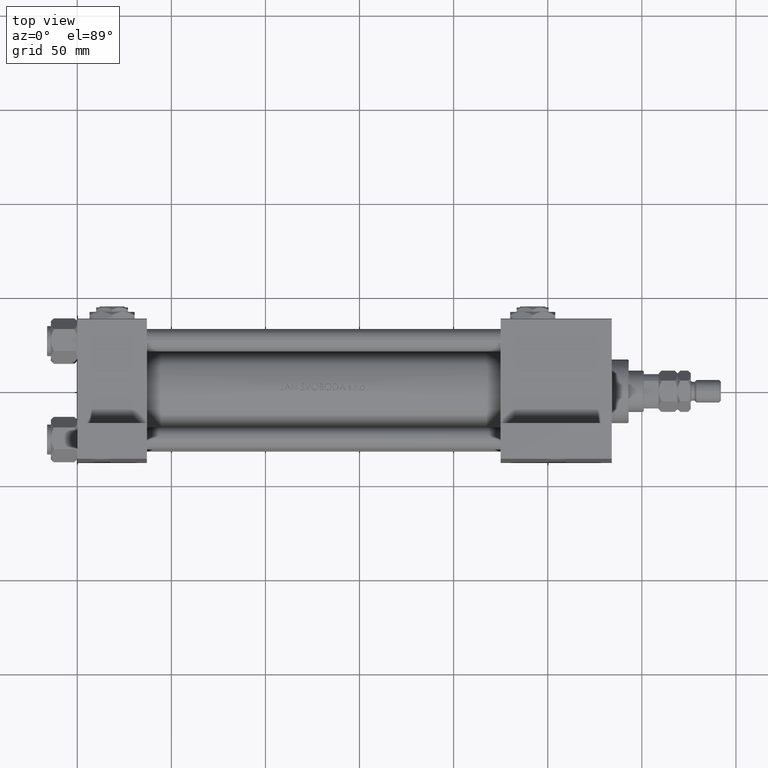
[diagram: clean part render]
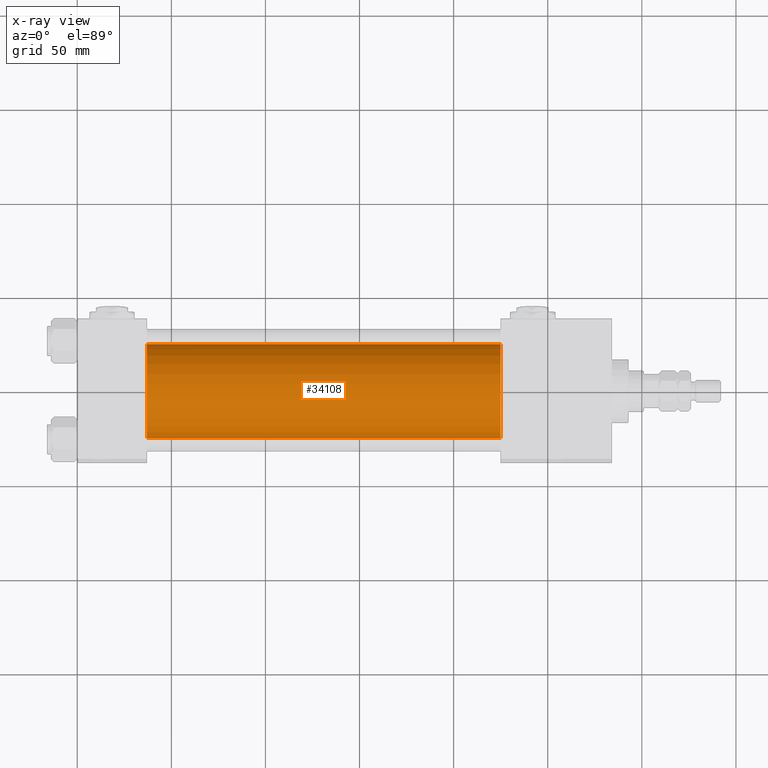
[diagram: x-ray — body ghosted, one internal face saturated and labeled with its STEP entity id]
A machine part, top view, then the same camera in x-ray: the body is ghosted and one INTERNAL B-rep face — a face not visible from any outside direction — is saturated and labeled: STEP entity #34108.
In plain terms, the highlighted cylindrical surface (partial cylindrical patch) has radius 25 mm, axis along (-1, -0, 0).
Its self-contained STEP definition (entity closure, byte-faithful):
#1568 = CARTESIAN_POINT ( 'NONE',  ( 225.0000000000000000, 3.061616997868383043E-15, -25.50000000000000355 ) ) ;
#1818 = LINE ( 'NONE', #1568, #21831 ) ;
#2705 = VERTEX_POINT ( 'NONE', #32955 ) ;
#2803 = CYLINDRICAL_SURFACE ( 'NONE', #25068, 25.00000000000000000 ) ;
#3318 = DIRECTION ( 'NONE',  ( -1.000000000000000000, -0.000000000000000000, -0.000000000000000000 ) ) ;
#6549 = ORIENTED_EDGE ( 'NONE', *, *, #45632, .F. ) ;
#7278 = EDGE_CURVE ( 'NONE', #14240, #26410, #19376, .T. ) ;
#8846 = LINE ( 'NONE', #13189, #20797 ) ;
#8925 = CIRCLE ( 'NONE', #12216, 25.00000000000000000 ) ;
#10347 = AXIS2_PLACEMENT_3D ( 'NONE', #36747, #44163, #25494 ) ;
#10978 = DIRECTION ( 'NONE',  ( 0.000000000000000000, 0.000000000000000000, 1.000000000000000000 ) ) ;
#11463 = ORIENTED_EDGE ( 'NONE', *, *, #40165, .T. ) ;
#12216 = AXIS2_PLACEMENT_3D ( 'NONE', #44286, #16934, #49110 ) ;
#13189 = CARTESIAN_POINT ( 'NONE',  ( 225.0000000000000000, 0.000000000000000000, 24.50000000000000000 ) ) ;
#14240 = VERTEX_POINT ( 'NONE', #16824 ) ;
#15554 = EDGE_LOOP ( 'NONE', ( #37726, #11463, #6549, #50478 ) ) ;
#15722 = VERTEX_POINT ( 'NONE', #35403 ) ;
#16824 = CARTESIAN_POINT ( 'NONE',  ( 225.0000000000000000, 0.000000000000000000, 24.50000000000000000 ) ) ;
#16934 = DIRECTION ( 'NONE',  ( 1.000000000000000000, 0.000000000000000000, 0.000000000000000000 ) ) ;
#18419 = FACE_OUTER_BOUND ( 'NONE', #15554, .T. ) ;
#19376 = CIRCLE ( 'NONE', #10347, 25.00000000000000000 ) ;
#20797 = VECTOR ( 'NONE', #40061, 1000.000000000000000 ) ;
#21036 = DIRECTION ( 'NONE',  ( -1.000000000000000000, -0.000000000000000000, -0.000000000000000000 ) ) ;
#21831 = VECTOR ( 'NONE', #21036, 1000.000000000000000 ) ;
#22521 = CARTESIAN_POINT ( 'NONE',  ( 225.0000000000000000, 0.000000000000000000, -0.5000000000000004441 ) ) ;
#25068 = AXIS2_PLACEMENT_3D ( 'NONE', #22521, #3318, #10978 ) ;
#25494 = DIRECTION ( 'NONE',  ( 0.000000000000000000, 0.000000000000000000, -1.000000000000000000 ) ) ;
#26410 = VERTEX_POINT ( 'NONE', #44201 ) ;
#29378 = EDGE_CURVE ( 'NONE', #14240, #15722, #8846, .T. ) ;
#32955 = CARTESIAN_POINT ( 'NONE',  ( 37.00000000000000000, 3.061616997868383043E-15, -25.50000000000000355 ) ) ;
#34108 = ADVANCED_FACE ( 'NONE', ( #18419 ), #2803, .F. ) ;
#35403 = CARTESIAN_POINT ( 'NONE',  ( 37.00000000000000000, 0.000000000000000000, 24.50000000000000000 ) ) ;
#36747 = CARTESIAN_POINT ( 'NONE',  ( 225.0000000000000000, 0.000000000000000000, -0.5000000000000004441 ) ) ;
#37726 = ORIENTED_EDGE ( 'NONE', *, *, #7278, .T. ) ;
#40061 = DIRECTION ( 'NONE',  ( -1.000000000000000000, -0.000000000000000000, -0.000000000000000000 ) ) ;
#40165 = EDGE_CURVE ( 'NONE', #26410, #2705, #1818, .T. ) ;
#44163 = DIRECTION ( 'NONE',  ( 1.000000000000000000, 0.000000000000000000, 0.000000000000000000 ) ) ;
#44201 = CARTESIAN_POINT ( 'NONE',  ( 225.0000000000000000, 3.061616997868383043E-15, -25.50000000000000355 ) ) ;
#44286 = CARTESIAN_POINT ( 'NONE',  ( 37.00000000000000000, 0.000000000000000000, -0.5000000000000004441 ) ) ;
#45632 = EDGE_CURVE ( 'NONE', #15722, #2705, #8925, .T. ) ;
#49110 = DIRECTION ( 'NONE',  ( 0.000000000000000000, 0.000000000000000000, -1.000000000000000000 ) ) ;
#50478 = ORIENTED_EDGE ( 'NONE', *, *, #29378, .F. ) ;